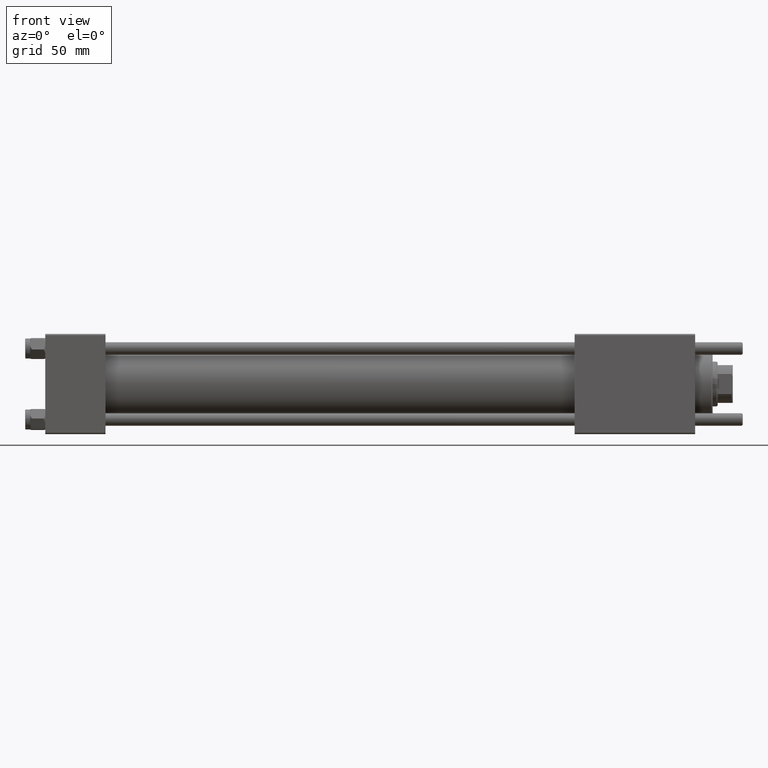
[diagram: clean part render]
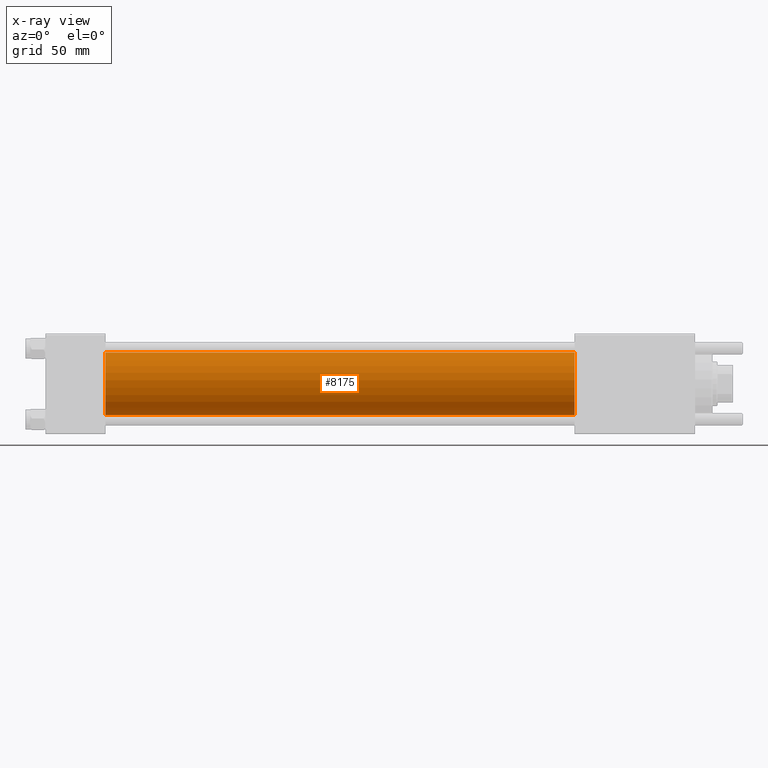
[diagram: x-ray — body ghosted, one internal face saturated and labeled with its STEP entity id]
A machine part, front view, then the same camera in x-ray: the body is ghosted and one INTERNAL B-rep face — a face not visible from any outside direction — is saturated and labeled: STEP entity #8175.
In plain terms, the highlighted cylindrical surface (edge-blend (fillet) strip) has radius 12.5 mm, axis along (-1, -0, -0).
Its self-contained STEP definition (entity closure, byte-faithful):
#562 = AXIS2_PLACEMENT_3D ( 'NONE', #19808, #32445, #36746 ) ;
#1081 = DIRECTION ( 'NONE',  ( 0.000000000000000000, 0.000000000000000000, 1.000000000000000000 ) ) ;
#1200 = ORIENTED_EDGE ( 'NONE', *, *, #21218, .T. ) ;
#3023 = VECTOR ( 'NONE', #43676, 1000.000000000000000 ) ;
#5110 = CARTESIAN_POINT ( 'NONE',  ( 211.0000000000000000, -2.602085213965210642E-15, 0.000000000000000000 ) ) ;
#6141 = VERTEX_POINT ( 'NONE', #25755 ) ;
#8175 = ADVANCED_FACE ( 'NONE', ( #9964 ), #27405, .F. ) ;
#9964 = FACE_OUTER_BOUND ( 'NONE', #28844, .T. ) ;
#11617 = VERTEX_POINT ( 'NONE', #39940 ) ;
#11683 = ORIENTED_EDGE ( 'NONE', *, *, #53952, .F. ) ;
#13365 = DIRECTION ( 'NONE',  ( 0.000000000000000000, 0.000000000000000000, -1.000000000000000000 ) ) ;
#13940 = DIRECTION ( 'NONE',  ( 1.000000000000000000, 0.000000000000000000, 0.000000000000000000 ) ) ;
#17601 = LINE ( 'NONE', #35079, #3023 ) ;
#19808 = CARTESIAN_POINT ( 'NONE',  ( 24.00000000000000000, -2.602085213965210642E-15, 0.000000000000000000 ) ) ;
#21218 = EDGE_CURVE ( 'NONE', #35445, #6141, #42367, .T. ) ;
#21636 = EDGE_CURVE ( 'NONE', #35445, #35156, #17601, .T. ) ;
#22927 = CARTESIAN_POINT ( 'NONE',  ( 24.00000000000000000, -2.602085213965210642E-15, 12.49999999999999645 ) ) ;
#25667 = EDGE_CURVE ( 'NONE', #6141, #11617, #33806, .T. ) ;
#25755 = CARTESIAN_POINT ( 'NONE',  ( 211.0000000000000000, -1.071276715031019515E-15, -12.49999999999999645 ) ) ;
#27405 = CYLINDRICAL_SURFACE ( 'NONE', #51297, 12.49999999999999645 ) ;
#28844 = EDGE_LOOP ( 'NONE', ( #1200, #35103, #11683, #52203 ) ) ;
#30725 = CIRCLE ( 'NONE', #562, 12.49999999999999645 ) ;
#32445 = DIRECTION ( 'NONE',  ( 1.000000000000000000, 0.000000000000000000, 0.000000000000000000 ) ) ;
#33806 = LINE ( 'NONE', #42416, #55692 ) ;
#35079 = CARTESIAN_POINT ( 'NONE',  ( 211.0000000000000000, -2.602085213965210642E-15, 12.49999999999999645 ) ) ;
#35103 = ORIENTED_EDGE ( 'NONE', *, *, #25667, .T. ) ;
#35156 = VERTEX_POINT ( 'NONE', #22927 ) ;
#35445 = VERTEX_POINT ( 'NONE', #46302 ) ;
#36746 = DIRECTION ( 'NONE',  ( 0.000000000000000000, 0.000000000000000000, -1.000000000000000000 ) ) ;
#39731 = CARTESIAN_POINT ( 'NONE',  ( 211.0000000000000000, -2.602085213965210642E-15, 0.000000000000000000 ) ) ;
#39940 = CARTESIAN_POINT ( 'NONE',  ( 24.00000000000000000, -1.071276715031019515E-15, -12.49999999999999645 ) ) ;
#42367 = CIRCLE ( 'NONE', #47853, 12.49999999999999645 ) ;
#42416 = CARTESIAN_POINT ( 'NONE',  ( 211.0000000000000000, -1.071276715031019515E-15, -12.49999999999999645 ) ) ;
#43676 = DIRECTION ( 'NONE',  ( -1.000000000000000000, -0.000000000000000000, -0.000000000000000000 ) ) ;
#44915 = DIRECTION ( 'NONE',  ( -1.000000000000000000, -0.000000000000000000, -0.000000000000000000 ) ) ;
#46302 = CARTESIAN_POINT ( 'NONE',  ( 211.0000000000000000, -2.602085213965210642E-15, 12.49999999999999645 ) ) ;
#47853 = AXIS2_PLACEMENT_3D ( 'NONE', #39731, #13940, #13365 ) ;
#51012 = DIRECTION ( 'NONE',  ( -1.000000000000000000, -0.000000000000000000, -0.000000000000000000 ) ) ;
#51297 = AXIS2_PLACEMENT_3D ( 'NONE', #5110, #44915, #1081 ) ;
#52203 = ORIENTED_EDGE ( 'NONE', *, *, #21636, .F. ) ;
#53952 = EDGE_CURVE ( 'NONE', #35156, #11617, #30725, .T. ) ;
#55692 = VECTOR ( 'NONE', #51012, 1000.000000000000000 ) ;